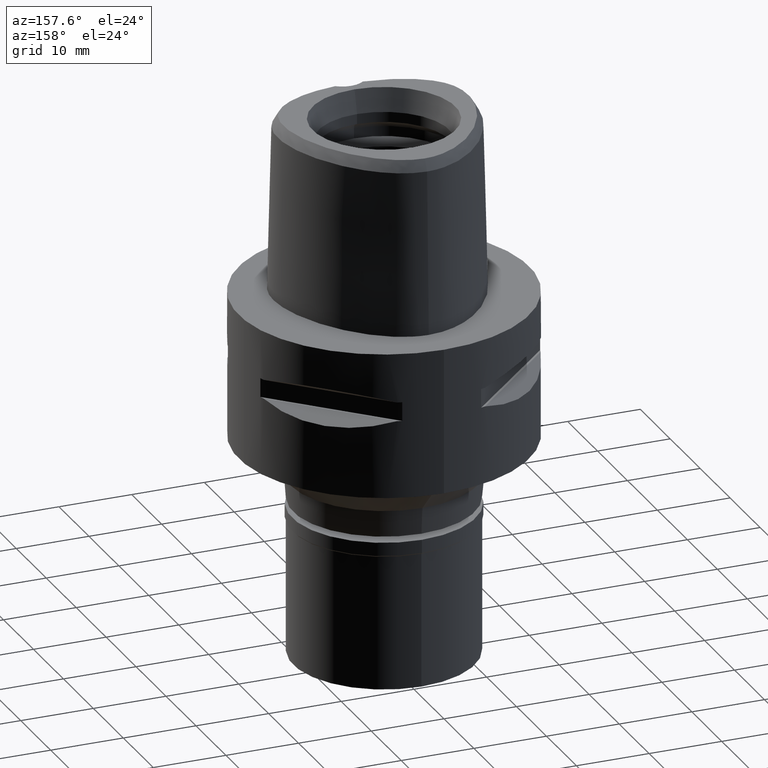
[diagram: clean part render]
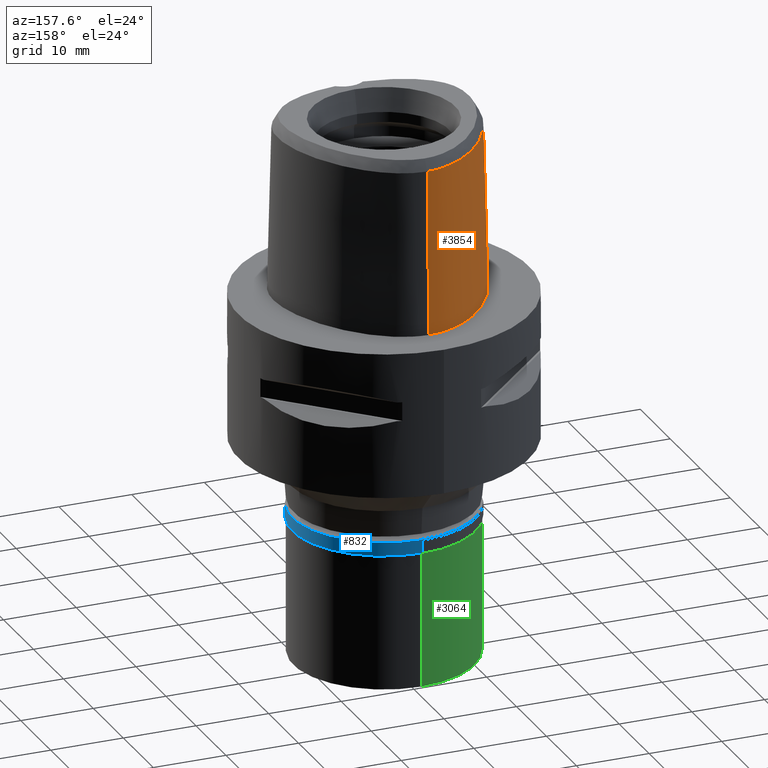
[diagram: same view with three faces highlighted in distinct colors, each labeled with its STEP entity id]
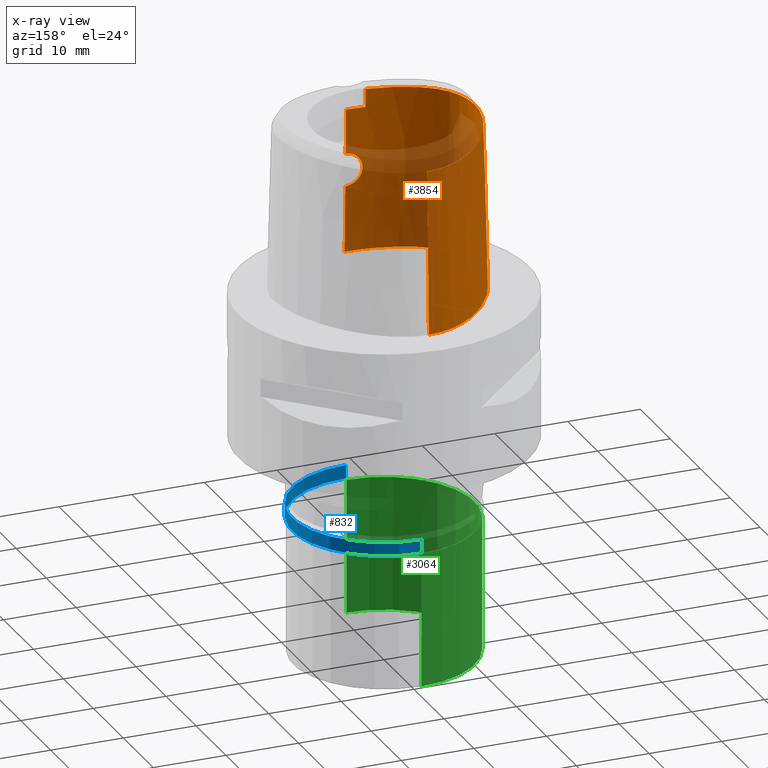
[diagram: x-ray of the same camera — body ghosted, the three highlighted faces saturated]
A machine part, auxiliary view with three faces highlighted in distinct colors.
The next image is the same camera in x-ray (body ghosted, the three faces saturated) — at least one of them is partly hidden behind the body in this view.
Their STEP definitions:

[orange] entity #3854 — the highlighted face is a freeform B-spline surface patch.
#12 = VECTOR ( 'NONE', #1520, 1000.000000000000000 ) ;
#39 = CARTESIAN_POINT ( 'NONE',  ( -1.347795335539689221, -13.16299999368002815, 2.529006730054260410E-07 ) ) ;
#46 = CARTESIAN_POINT ( 'NONE',  ( -9.263792084140000327, -10.80433664803999960, 7.356785167064000319 ) ) ;
#67 = CARTESIAN_POINT ( 'NONE',  ( -7.031868851921999841, -11.67341274055999989, 15.16398575251999858 ) ) ;
#69 = CARTESIAN_POINT ( 'NONE',  ( -1.214948594906910317, -12.79380401828840874, 13.45328328240799465 ) ) ;
#89 = CARTESIAN_POINT ( 'NONE',  ( -14.06716929407000016, -4.370330523283000090, -0.4504154183917000731 ) ) ;
#92 = CARTESIAN_POINT ( 'NONE',  ( -1.841838764608476842, -12.76497262167227476, 12.88570671879769414 ) ) ;
#112 = CARTESIAN_POINT ( 'NONE',  ( 0.8641029021681000399, -12.96254431192000212, 7.356785167064000319 ) ) ;
#130 = CARTESIAN_POINT ( 'NONE',  ( -12.06000614691000017, -7.835334318890000205, 22.97118633798000431 ) ) ;
#131 = EDGE_CURVE ( 'NONE', #4135, #1417, #4088, .T. ) ;
#146 = CARTESIAN_POINT ( 'NONE',  ( -1.826504515500986914, -12.83620081350063558, 10.10016303675815230 ) ) ;
#173 = CARTESIAN_POINT ( 'NONE',  ( -1.376879184710185333, -12.88006211686749758, 9.651496333327724386 ) ) ;
#195 = CARTESIAN_POINT ( 'NONE',  ( -2.018817522271044052, -12.81220052564507661, 10.39736850500416310 ) ) ;
#220 = CARTESIAN_POINT ( 'NONE',  ( -2.295509092785640082, -12.75393387474881024, 11.64825047697175542 ) ) ;
#291 = B_SPLINE_SURFACE_WITH_KNOTS ( 'NONE', 3, 3, ( 
 ( #3999, #3556, #2850, #3266 ),
 ( #3585, #2895, #3978, #1483 ),
 ( #2190, #307, #4299, #3633 ),
 ( #2491, #750, #1764, #4348 ),
 ( #4664, #1384, #2921, #2871 ),
 ( #1112, #4685, #1432, #2557 ),
 ( #2210, #395, #1026, #4636 ),
 ( #2473, #3930, #1044, #686 ),
 ( #3681, #3742, #1925, #4487 ),
 ( #1504, #2323, #2643, #4021 ),
 ( #1524, #2235, #1163, #2299 ),
 ( #89, #2669, #2941, #1856 ),
 ( #4446, #825, #437, #3697 ),
 ( #1231, #3294, #4463, #804 ),
 ( #3004, #1877, #4397, #1185 ),
 ( #1900, #3721, #1944, #130 ),
 ( #1204, #3316, #1135, #2623 ),
 ( #3338, #463, #3382, #1589 ),
 ( #418, #46, #4118, #851 ),
 ( #2580, #783, #67, #2963 ),
 ( #4421, #2602, #4047, #874 ),
 ( #1549, #2986, #4091, #4071 ),
 ( #3365, #489, #2258, #2279 ),
 ( #3764, #112, #3026, #1570 ) ),
 .UNSPECIFIED., .F., .F., .F.,
 ( 4, 1, 1, 1, 1, 1, 1, 1, 1, 1, 1, 1, 1, 1, 1, 1, 1, 1, 1, 1, 1, 4 ),
 ( 4, 4 ),
 ( -0.01174028709111000005, 0.0000000000000000000, 0.04166666667075000219, 0.08333333333723000336, 0.1666666666703000010, 0.2500000000031999958, 0.3333333333362000217, 0.4166666666691999921, 0.5000000000022000179, 0.5416666666687000031, 0.5833333333350999572, 0.6250000000016999735, 0.6458333333349000061, 0.6666666666682000697, 0.6875000000013999912, 0.7083333333346000238, 0.7500000000011000090, 0.7916666666677000253, 0.8333333333340999793, 0.9166666666671999808, 1.000000000000000000, 1.017964572395999800 ),
 ( -4.145565637991999915E-08, 1.000002114238999873 ),
 .UNSPECIFIED. ) ;
#307 = CARTESIAN_POINT ( 'NONE',  ( -0.3811409327697999894, 14.79504106564999866, 7.356785167064000319 ) ) ;
#341 = CARTESIAN_POINT ( 'NONE',  ( -12.82590901148556206, -6.531187915556558643, 22.52071717950003205 ) ) ;
#374 = CARTESIAN_POINT ( 'NONE',  ( 0.0000000000000000000, -12.81802318095999915, 13.79999999999999893 ) ) ;
#381 = CARTESIAN_POINT ( 'NONE',  ( -2.428699441135000389E-12, -13.16299999999999848, 3.877268876332999996E-13 ) ) ;
#386 = DIRECTION ( 'NONE',  ( 1.017277063185027972E-11, 0.02499051293165070395, -0.9996876883624270516 ) ) ;
#395 = CARTESIAN_POINT ( 'NONE',  ( -9.029359444128999712, 9.844403358753998745, 7.356785167064000319 ) ) ;
#418 = CARTESIAN_POINT ( 'NONE',  ( -9.360479238253001100, -10.97457288378999962, -0.4504154183917000731 ) ) ;
#437 = CARTESIAN_POINT ( 'NONE',  ( -13.37282164668999762, -5.628458944754999749, 15.16398575251999858 ) ) ;
#463 = CARTESIAN_POINT ( 'NONE',  ( -10.69740336653000057, -9.843145439085001058, 7.356785167064000319 ) ) ;
#489 = CARTESIAN_POINT ( 'NONE',  ( 0.5764111312063000536, -12.97358038101000055, 7.356785167064000319 ) ) ;
#502 = CARTESIAN_POINT ( 'NONE',  ( -2.140846386073651963, -12.79421935293861523, 10.65923901443731836 ) ) ;
#522 = CARTESIAN_POINT ( 'NONE',  ( -2.194313938148278353, -12.78526572574067899, 10.80969661529742076 ) ) ;
#552 = CARTESIAN_POINT ( 'NONE',  ( -1.653748280665647385, -12.85457989003768908, 9.901499109432402079 ) ) ;
#575 = CARTESIAN_POINT ( 'NONE',  ( -0.9848863495909622179, -12.90598536776486505, 9.421068656341857306 ) ) ;
#656 = CARTESIAN_POINT ( 'NONE',  ( -3.539803248252630485, 13.67924950902435910, 22.52071717950003205 ) ) ;
#674 = CARTESIAN_POINT ( 'NONE',  ( -11.01301038052310943, 6.358384390486118143, 22.52071717950003205 ) ) ;
#686 = CARTESIAN_POINT ( 'NONE',  ( -11.00320909744000097, 6.352726014762000162, 22.97118633798000431 ) ) ;
#715 = CARTESIAN_POINT ( 'NONE',  ( -2.075653757163896884, -12.75436700818544011, 12.49185155364052058 ) ) ;
#742 = LINE ( 'NONE', #2202, #2586 ) ;
#750 = CARTESIAN_POINT ( 'NONE',  ( -1.594059741186999890, 14.66589037872999945, 7.356785167064000319 ) ) ;
#755 = CARTESIAN_POINT ( 'NONE',  ( -1.011878398766373754, -12.80112054547331901, 13.56692882181785365 ) ) ;
#766 = VERTEX_POINT ( 'NONE', #1010 ) ;
#770 = CARTESIAN_POINT ( 'NONE',  ( -2.227964660006181763, -12.74977029743578427, 12.09060403548146745 ) ) ;
#783 = CARTESIAN_POINT ( 'NONE',  ( -7.098705601865000325, -11.85792493105999945, 7.356785167064000319 ) ) ;
#804 = CARTESIAN_POINT ( 'NONE',  ( -12.81560164319999906, -6.526604538018999868, 22.97118633798000431 ) ) ;
#806 = CARTESIAN_POINT ( 'NONE',  ( -1.599690988516359935, -12.77714212764092316, 13.15267742123481298 ) ) ;
#825 = CARTESIAN_POINT ( 'NONE',  ( -13.56059764589999972, -5.684126879757000594, 7.356785167064000319 ) ) ;
#851 = CARTESIAN_POINT ( 'NONE',  ( -9.070417775914998870, -10.46386417653000045, 22.97118633798000431 ) ) ;
#865 = CARTESIAN_POINT ( 'NONE',  ( -1.640618828100755877, -12.85590380833830260, 9.888026571611273852 ) ) ;
#874 = CARTESIAN_POINT ( 'NONE',  ( -3.941817108580000451, -12.35544361746000064, 22.97118633798000431 ) ) ;
#886 = CARTESIAN_POINT ( 'NONE',  ( -1.953201304415306705, -12.82084256532890443, 10.28519075025628560 ) ) ;
#910 = CARTESIAN_POINT ( 'NONE',  ( -1.505001200656392424, -12.86943791852777963, 9.752156969249115903 ) ) ;
#913 = CARTESIAN_POINT ( 'NONE',  ( 0.0000000000000000000, -12.81802318095999915, 13.79999999999999893 ) ) ;
#941 = CARTESIAN_POINT ( 'NONE',  ( -2.568703252653000479, -12.45023756080000155, 22.52071717950000007 ) ) ;
#957 = CARTESIAN_POINT ( 'NONE',  ( -1.123943696501069178, -12.89774608795628197, 9.492107695863516881 ) ) ;
#984 = ORIENTED_EDGE ( 'NONE', *, *, #2571, .T. ) ;
#996 = B_SPLINE_CURVE_WITH_KNOTS ( 'NONE', 3,
 ( #4674, #1752, #2053, #2126, #3492, #2858, #2151, #3189, #3598, #341, #2428, #2085, #1443, #3877, #3904, #674, #4310, #2881, #656, #4333, #3521, #1703 ),
 .UNSPECIFIED., .F., .F.,
 ( 4, 1, 1, 1, 1, 1, 1, 1, 1, 1, 1, 1, 1, 1, 1, 1, 1, 1, 1, 4 ),
 ( 0.0000000000000000000, 0.03040433083227192870, 0.1185493916654036667, 0.1626219220818108380, 0.2066944524984296039, 0.2507669829149425378, 0.2728032481231462136, 0.2948395133313497229, 0.3168757785396591475, 0.3389120437478628234, 0.3829845741644815615, 0.4270571045808887467, 0.4711296349974016806, 0.5592746958304276594, 0.6474197566634535272, 0.7355648174964796171, 0.8237098783293996807, 0.9118549391624997114, 0.9559274695789915510, 1.000000000000000000 ),
 .UNSPECIFIED. ) ;
#1010 = CARTESIAN_POINT ( 'NONE',  ( -6.268853442822000267E-11, 14.40001989798000182, 22.52071729252999788 ) ) ;
#1026 = CARTESIAN_POINT ( 'NONE',  ( -8.879307693765998266, 9.717869168045000450, 15.16398575251999858 ) ) ;
#1038 = CARTESIAN_POINT ( 'NONE',  ( -7.161686383300074787, -12.03179218152517471, 2.529006730054260410E-07 ) ) ;
#1044 = CARTESIAN_POINT ( 'NONE',  ( -11.17307773679999983, 6.450792826738999786, 15.16398575251999858 ) ) ;
#1045 = ORIENTED_EDGE ( 'NONE', *, *, #2288, .F. ) ;
#1050 = EDGE_CURVE ( 'NONE', #4301, #2286, #2139, .T. ) ;
#1057 = CARTESIAN_POINT ( 'NONE',  ( -0.5439938568822766385, 14.96299999368391731, 2.529006730054260410E-07 ) ) ;
#1070 = CARTESIAN_POINT ( 'NONE',  ( -1.965252258605611591, -12.75916002378915159, 12.69725596527202072 ) ) ;
#1093 = CARTESIAN_POINT ( 'NONE',  ( -2.110909525984961288, -12.75302106767308707, 12.41330912378777107 ) ) ;
#1105 = CARTESIAN_POINT ( 'NONE',  ( -6.372642517147525609, 12.66899061998852538, 2.529006730054260410E-07 ) ) ;
#1112 = CARTESIAN_POINT ( 'NONE',  ( -6.379661316068999888, 12.67792013946000118, -0.4504154183917000731 ) ) ;
#1135 = CARTESIAN_POINT ( 'NONE',  ( -11.56079927202000057, -8.766973794543000409, 15.16398575251999858 ) ) ;
#1163 = CARTESIAN_POINT ( 'NONE',  ( -13.79295327894999978, -2.621895083530000115, 15.16398575251999858 ) ) ;
#1166 = CARTESIAN_POINT ( 'NONE',  ( -1.488347988393551091, -12.78243808049003505, 13.25392016210674484 ) ) ;
#1185 = CARTESIAN_POINT ( 'NONE',  ( -12.47264419344000075, -7.201084481831999895, 22.97118633798000431 ) ) ;
#1204 = CARTESIAN_POINT ( 'NONE',  ( -11.84499494409999976, -9.036543429988999065, -0.4504154183917000731 ) ) ;
#1221 = CARTESIAN_POINT ( 'NONE',  ( -0.9319488030642069099, -12.90881411230993514, 9.397158616747370630 ) ) ;
#1231 = CARTESIAN_POINT ( 'NONE',  ( -13.35152085230000019, -6.764911736999000169, -0.4504154183917000731 ) ) ;
#1243 = CARTESIAN_POINT ( 'NONE',  ( -1.936335331577908825, -12.82296972919318989, 10.25874399572378515 ) ) ;
#1267 = CARTESIAN_POINT ( 'NONE',  ( -3.136064137311999915E-13, -12.93301545397000041, 9.199999999999999289 ) ) ;
#1280 = CARTESIAN_POINT ( 'NONE',  ( -2.603602034519999719, -12.50961198144999997, 20.00000000000000000 ) ) ;
#1289 = CARTESIAN_POINT ( 'NONE',  ( -1.673318493212270885, -12.85259581698449871, 9.921828725747490196 ) ) ;
#1321 = CARTESIAN_POINT ( 'NONE',  ( -2.071380972957955979, -12.80488926460895627, 10.49747195909083608 ) ) ;
#1384 = CARTESIAN_POINT ( 'NONE',  ( -3.702933630589999581, 14.02580463633000107, 7.356785167064000319 ) ) ;
#1405 = CARTESIAN_POINT ( 'NONE',  ( -13.73754040830366741, -5.736583201321001191, 2.529006730054260410E-07 ) ) ;
#1417 = VERTEX_POINT ( 'NONE', #1280 ) ;
#1432 = CARTESIAN_POINT ( 'NONE',  ( -6.136343090077000184, 12.36836363825000085, 15.16398575251999858 ) ) ;
#1443 = CARTESIAN_POINT ( 'NONE',  ( -13.60847657048161885, -2.623199557594503517, 22.52071717950003205 ) ) ;
#1474 = CARTESIAN_POINT ( 'NONE',  ( 1.664811294063999892E-10, 14.96299999994999830, 3.883375102968000129E-13 ) ) ;
#1483 = CARTESIAN_POINT ( 'NONE',  ( 0.2833924624936000058, 14.38450250588999957, 22.97118633798000431 ) ) ;
#1487 = CARTESIAN_POINT ( 'NONE',  ( -0.8152708980165711550, -12.80693898155978694, 13.65082120268139043 ) ) ;
#1504 = CARTESIAN_POINT ( 'NONE',  ( -14.01182760107000114, -0.1843230755137999777, -0.4504154183917000731 ) ) ;
#1520 = DIRECTION ( 'NONE',  ( -2.298296151342910266E-13, -0.02499051295424905769, -0.9996876883618621701 ) ) ;
#1524 = CARTESIAN_POINT ( 'NONE',  ( -14.18449854077999994, -2.619126383658000101, -0.4504154183917000731 ) ) ;
#1549 = CARTESIAN_POINT ( 'NONE',  ( -1.057767382168000037, -13.20004108272000032, -0.4504154183917000731 ) ) ;
#1551 = CARTESIAN_POINT ( 'NONE',  ( -1.531093129367631978, -12.78047425280173677, 13.21704160996870669 ) ) ;
#1570 = CARTESIAN_POINT ( 'NONE',  ( 0.8491476808087998762, -12.57247799159000223, 22.97118633798000431 ) ) ;
#1586 = CARTESIAN_POINT ( 'NONE',  ( -2.568703252653000479, -12.45023756080000155, 22.52071717950000007 ) ) ;
#1589 = CARTESIAN_POINT ( 'NONE',  ( -10.45540628447999865, -9.534714904185999984, 22.97118633798000431 ) ) ;
#1604 = CARTESIAN_POINT ( 'NONE',  ( -2.287734898354136348, -12.76560074340179085, 11.21901780316244412 ) ) ;
#1626 = CARTESIAN_POINT ( 'NONE',  ( -1.186927697902216083, -12.89362213064997498, 9.528479479259775786 ) ) ;
#1648 = CARTESIAN_POINT ( 'NONE',  ( -1.924883428630888238, -12.82440318964656711, 10.24105807494909115 ) ) ;
#1673 = CARTESIAN_POINT ( 'NONE',  ( -2.300143802991293729, -12.76057655722843798, 11.36375986572099883 ) ) ;
#1703 = CARTESIAN_POINT ( 'NONE',  ( -6.268853442822000267E-11, 14.40001989798000182, 22.52071729252999788 ) ) ;
#1752 = CARTESIAN_POINT ( 'NONE',  ( -3.014424021962877731, -12.39773933600193878, 22.52071717950003205 ) ) ;
#1764 = CARTESIAN_POINT ( 'NONE',  ( -1.553816165458999921, 14.47371231126999902, 15.16398575251999858 ) ) ;
#1779 = CARTESIAN_POINT ( 'NONE',  ( -2.603602034519999719, -12.50961198144999997, 20.00000000000000000 ) ) ;
#1781 = CARTESIAN_POINT ( 'NONE',  ( 1.664811294063999892E-10, 14.96299999994999830, 3.883375102968000129E-13 ) ) ;
#1834 = CARTESIAN_POINT ( 'NONE',  ( -0.5819386986818497753, -12.81237603767194599, 13.72652564638334916 ) ) ;
#1848 = CARTESIAN_POINT ( 'NONE',  ( -11.50301489621815776, 6.641268746823373093, 2.529006730054260410E-07 ) ) ;
#1856 = CARTESIAN_POINT ( 'NONE',  ( -13.48500858715999939, -4.287290187550000020, 22.97118633798000431 ) ) ;
#1874 = CARTESIAN_POINT ( 'NONE',  ( -3.136064137311999915E-13, -12.93301545397000041, 9.199999999999999289 ) ) ;
#1877 = CARTESIAN_POINT ( 'NONE',  ( -12.81132618974999993, -7.396622624083001085, 7.356785167064000319 ) ) ;
#1879 = CARTESIAN_POINT ( 'NONE',  ( -1.150408608482918371, -12.79622784198479657, 13.49197783700753916 ) ) ;
#1900 = CARTESIAN_POINT ( 'NONE',  ( -12.53434584485000158, -8.180300368746999951, -0.4504154183917000731 ) ) ;
#1922 = CARTESIAN_POINT ( 'NONE',  ( -2.580556340274079208, -12.46988384530705041, 21.68047811966666671 ) ) ;
#1925 = CARTESIAN_POINT ( 'NONE',  ( -12.85560852364000084, 2.830737010018999911, 15.16398575251999858 ) ) ;
#1944 = CARTESIAN_POINT ( 'NONE',  ( -12.21811937956000094, -7.950323002176000742, 15.16398575251999858 ) ) ;
#1979 = CARTESIAN_POINT ( 'NONE',  ( -1.969151562591274995, -12.81878448191199382, 10.31136768718370256 ) ) ;
#2006 = CARTESIAN_POINT ( 'NONE',  ( -0.8945153555997669148, -12.91072944406700351, 9.381059634973302863 ) ) ;
#2053 = CARTESIAN_POINT ( 'NONE',  ( -4.736458213767877901, -12.13940339377869471, 22.52071717950003205 ) ) ;
#2085 = CARTESIAN_POINT ( 'NONE',  ( -13.49620532111823401, -4.288887307616622735, 22.52071717950003205 ) ) ;
#2101 = EDGE_CURVE ( 'NONE', #2286, #3564, #2599, .T. ) ;
#2126 = CARTESIAN_POINT ( 'NONE',  ( -6.968888528385980052, -11.49954675418917027, 22.52071717950003205 ) ) ;
#2139 = B_SPLINE_CURVE_WITH_KNOTS ( 'NONE', 3,
 ( #374, #2239, #2559, #3246, #1834, #2942, #4026, #1487, #3318, #3271, #4002, #2584, #755, #2215, #1879, #69, #2966, #4425, #1166, #1551, #4050, #806, #3699, #3342, #92, #1070, #2516, #3961, #715, #3614, #1093, #2539, #3980, #4013, #770, #2226, #3464, #4504, #220, #4154, #4576, #1673, #1604, #2731, #3395, #522, #3849, #2311, #502, #3442, #2706, #3115, #1321, #195, #2758, #1979, #886, #1243, #1648, #2681, #3777, #146, #4131, #3422, #1289, #552, #865, #2334, #910, #173, #1626, #957, #4209, #575, #1221, #3066, #2006, #4527, #2403, #2382, #1267 ),
 .UNSPECIFIED., .F., .F.,
 ( 4, 2, 2, 1, 1, 2, 2, 2, 2, 1, 2, 1, 2, 2, 2, 2, 1, 1, 2, 2, 2, 2, 2, 2, 2, 2, 1, 1, 2, 2, 2, 2, 1, 2, 2, 2, 1, 1, 2, 2, 2, 2, 1, 1, 2, 2, 4 ),
 ( 0.0000000000000000000, 0.06250000000000477396, 0.09375000000000716094, 0.1093750000000082573, 0.1171875000000088263, 0.1210937500000092426, 0.1250000000000096867, 0.1562500000000119627, 0.1718750000000131561, 0.1875000000000143496, 0.2187500000000163758, 0.2343750000000174305, 0.2421875000000181521, 0.2500000000000188738, 0.3125000000000266454, 0.3437500000000305311, 0.3593750000000321965, 0.3671875000000325850, 0.3710937500000328071, 0.3750000000000329736, 0.4375000000000303646, 0.4687500000000294209, 0.4843750000000292544, 0.5000000000000290878, 0.5625000000000264233, 0.5937500000000249800, 0.6093750000000243139, 0.6171875000000240918, 0.6210937500000235367, 0.6250000000000230926, 0.6562500000000152101, 0.6718750000000113243, 0.6796875000000096589, 0.6835937500000089928, 0.6875000000000084377, 0.7187500000000051070, 0.7343750000000034417, 0.7421875000000026645, 0.7460937500000024425, 0.7500000000000023315, 0.8125000000000012212, 0.8437500000000005551, 0.8593750000000002220, 0.8671875000000001110, 0.8710937500000000000, 0.8750000000000000000, 1.000000000000000000 ),
 .UNSPECIFIED. ) ;
#2151 = CARTESIAN_POINT ( 'NONE',  ( -11.42690036617553950, -8.639965951774202679, 22.52071717950003205 ) ) ;
#2157 = CARTESIAN_POINT ( 'NONE',  ( -4.043386006610663053, -12.92392499374611248, 2.529006730054260410E-07 ) ) ;
#2167 = CARTESIAN_POINT ( 'NONE',  ( 0.0000000000000000000, -12.81802318095999915, 13.79999999999999893 ) ) ;
#2190 = CARTESIAN_POINT ( 'NONE',  ( -0.3913005304923000138, 14.99062904296999932, -0.4504154183917000731 ) ) ;
#2194 = B_SPLINE_CURVE_WITH_KNOTS ( 'NONE', 3,
 ( #1474, #1057, #3258, #3646, #1105, #3972, #1848, #4656, #3551, #4388, #2912, #1405, #3285, #3577, #4294, #3217, #4366, #3193, #1038, #2157, #39, #4678 ),
 .UNSPECIFIED., .F., .F.,
 ( 4, 1, 1, 1, 1, 1, 1, 1, 1, 1, 1, 1, 1, 1, 1, 1, 1, 1, 1, 4 ),
 ( 0.0000000000000000000, 0.04166666667075000219, 0.08333333333723000336, 0.1666666666703000010, 0.2500000000031999958, 0.3333333333362000217, 0.4166666666691999921, 0.5000000000022000179, 0.5416666666687000031, 0.5833333333350999572, 0.6250000000016999735, 0.6458333333349000061, 0.6666666666682000697, 0.6875000000013999912, 0.7083333333346000238, 0.7500000000011000090, 0.7916666666677000253, 0.8333333333340999793, 0.9166666666671999808, 1.000000000000000000 ),
 .UNSPECIFIED. ) ;
#2202 = CARTESIAN_POINT ( 'NONE',  ( -6.268853442822000267E-11, 14.40001989798000182, 22.52071729252999788 ) ) ;
#2210 = CARTESIAN_POINT ( 'NONE',  ( -9.179411194492001158, 9.970937549464000682, -0.4504154183917000731 ) ) ;
#2215 = CARTESIAN_POINT ( 'NONE',  ( -1.115229725332413491, -12.79751522695110388, 13.51191098754960507 ) ) ;
#2226 = CARTESIAN_POINT ( 'NONE',  ( -2.271431586346507547, -12.75091221571057609, 11.86913203842019726 ) ) ;
#2235 = CARTESIAN_POINT ( 'NONE',  ( -13.98872590987000031, -2.620510733594000108, 7.356785167064000319 ) ) ;
#2239 = CARTESIAN_POINT ( 'NONE',  ( -0.1401305126056105743, -12.81802318096000270, 13.80000000000000426 ) ) ;
#2258 = CARTESIAN_POINT ( 'NONE',  ( 0.5714334852506000040, -12.77845896670000059, 15.16398575251999858 ) ) ;
#2276 = CARTESIAN_POINT ( 'NONE',  ( -3.136064137311999915E-13, -12.93301545397000041, 9.199999999999999289 ) ) ;
#2279 = CARTESIAN_POINT ( 'NONE',  ( 0.5664558392949999854, -12.58333755239000062, 22.97118633798000431 ) ) ;
#2286 = VERTEX_POINT ( 'NONE', #2276 ) ;
#2288 = EDGE_CURVE ( 'NONE', #2391, #1417, #2977, .T. ) ;
#2299 = CARTESIAN_POINT ( 'NONE',  ( -13.59718064803999837, -2.623279433466000121, 22.97118633798000431 ) ) ;
#2311 = CARTESIAN_POINT ( 'NONE',  ( -2.151849462947669878, -12.79245487688642946, 10.68743969069598343 ) ) ;
#2323 = CARTESIAN_POINT ( 'NONE',  ( -13.81861777200999875, -0.2186980999406999970, 7.356785167064000319 ) ) ;
#2334 = CARTESIAN_POINT ( 'NONE',  ( -1.635013697133357313, -12.85646650681847092, 9.882332749081379930 ) ) ;
#2382 = CARTESIAN_POINT ( 'NONE',  ( -0.2871975164121355339, -12.93301545397000218, 9.200000000000001066 ) ) ;
#2391 = VERTEX_POINT ( 'NONE', #941 ) ;
#2403 = CARTESIAN_POINT ( 'NONE',  ( -0.5889969291352912251, -12.92583349803552117, 9.254553718819758856 ) ) ;
#2407 = CARTESIAN_POINT ( 'NONE',  ( -0.8728571771476222318, -12.66303360443449222, 19.99999964621421000 ) ) ;
#2428 = CARTESIAN_POINT ( 'NONE',  ( -13.19588017074105224, -5.576003004572418931, 22.52071717950003205 ) ) ;
#2473 = CARTESIAN_POINT ( 'NONE',  ( -11.51281501553000020, 6.646926450691000632, -0.4504154183917000731 ) ) ;
#2491 = CARTESIAN_POINT ( 'NONE',  ( -1.634303316915000082, 14.85806844620000078, -0.4504154183917000731 ) ) ;
#2510 = CARTESIAN_POINT ( 'NONE',  ( -4.221675219619160308E-09, -12.76635998234183766, 15.86666680636480997 ) ) ;
#2516 = CARTESIAN_POINT ( 'NONE',  ( -2.002296320555181364, -12.75747848527826278, 12.63397802741203613 ) ) ;
#2536 = VERTEX_POINT ( 'NONE', #1781 ) ;
#2539 = CARTESIAN_POINT ( 'NONE',  ( -2.117617568217390112, -12.75277667900068224, 12.39764604230459533 ) ) ;
#2557 = CARTESIAN_POINT ( 'NONE',  ( -6.014683977081999977, 12.21358538764999935, 22.97118633798000431 ) ) ;
#2559 = CARTESIAN_POINT ( 'NONE',  ( -0.2855776774823177711, -12.81694753461941794, 13.78716430547175342 ) ) ;
#2571 = EDGE_CURVE ( 'NONE', #2536, #3564, #2194, .T. ) ;
#2580 = CARTESIAN_POINT ( 'NONE',  ( -7.165542351807999921, -12.04243712156999990, -0.4504154183917000731 ) ) ;
#2584 = CARTESIAN_POINT ( 'NONE',  ( -0.9448229129271795701, -12.80325335383371410, 13.59813410706257741 ) ) ;
#2586 = VECTOR ( 'NONE', #386, 1000.000000000000114 ) ;
#2599 = LINE ( 'NONE', #1874, #12 ) ;
#2602 = CARTESIAN_POINT ( 'NONE',  ( -4.010857406040999606, -12.74186233500999776, 7.356785167064000319 ) ) ;
#2623 = CARTESIAN_POINT ( 'NONE',  ( -11.41870143598000098, -8.632188976819998416, 22.97118633798000431 ) ) ;
#2639 = CARTESIAN_POINT ( 'NONE',  ( -2.603602034519999719, -12.50961198144999997, 20.00000000000000000 ) ) ;
#2643 = CARTESIAN_POINT ( 'NONE',  ( -13.62540794294000079, -0.2530731243674999575, 15.16398575251999858 ) ) ;
#2668 = ORIENTED_EDGE ( 'NONE', *, *, #3761, .F. ) ;
#2669 = CARTESIAN_POINT ( 'NONE',  ( -13.87311572510000168, -4.342650411371999475, 7.356785167064000319 ) ) ;
#2681 = CARTESIAN_POINT ( 'NONE',  ( -1.918338618982708299, -12.82521576174283062, 10.23111646875308800 ) ) ;
#2706 = CARTESIAN_POINT ( 'NONE',  ( -2.128793241413422965, -12.79612817070244724, 10.62919246598731959 ) ) ;
#2731 = CARTESIAN_POINT ( 'NONE',  ( -2.245603534414450930, -12.77547641080668406, 10.99707330927152604 ) ) ;
#2753 = EDGE_CURVE ( 'NONE', #766, #2536, #742, .T. ) ;
#2758 = CARTESIAN_POINT ( 'NONE',  ( -1.999884899135028427, -12.81476042234132251, 10.36330347219744397 ) ) ;
#2850 = CARTESIAN_POINT ( 'NONE',  ( 0.4366859228247000346, 14.57070289980000055, 15.16398575251999858 ) ) ;
#2858 = CARTESIAN_POINT ( 'NONE',  ( -10.46238780242026678, -9.543613000371962585, 22.52071717950003205 ) ) ;
#2871 = CARTESIAN_POINT ( 'NONE',  ( -3.534957196055000139, 13.66895452772000041, 22.97118633798000431 ) ) ;
#2881 = CARTESIAN_POINT ( 'NONE',  ( -6.021703609490875131, 12.22251596750838054, 22.52071717950003205 ) ) ;
#2895 = CARTESIAN_POINT ( 'NONE',  ( 0.2991395936534999578, 14.77459901527000063, 7.356785167064000319 ) ) ;
#2912 = CARTESIAN_POINT ( 'NONE',  ( -14.05597388957416349, -4.368733592853022429, 2.529006730054260410E-07 ) ) ;
#2921 = CARTESIAN_POINT ( 'NONE',  ( -3.618945413321999816, 13.84737958202999941, 15.16398575251999858 ) ) ;
#2941 = CARTESIAN_POINT ( 'NONE',  ( -13.67906215612999965, -4.314970299460999748, 15.16398575251999858 ) ) ;
#2942 = CARTESIAN_POINT ( 'NONE',  ( -0.6939323844612986791, -12.80995583340563826, 13.69316554814096065 ) ) ;
#2963 = CARTESIAN_POINT ( 'NONE',  ( -6.965032101979000245, -11.48890055004999944, 22.97118633798000431 ) ) ;
#2966 = CARTESIAN_POINT ( 'NONE',  ( -1.310334703300464421, -12.79012657991068380, 13.39286631455621013 ) ) ;
#2977 = B_SPLINE_CURVE_WITH_KNOTS ( 'NONE', 3,
 ( #1586, #1922, #3361, #2639 ),
 .UNSPECIFIED., .F., .F.,
 ( 4, 4 ),
 ( 0.0000000000000000000, 1.000000000000000000 ),
 .UNSPECIFIED. ) ;
#2986 = CARTESIAN_POINT ( 'NONE',  ( -1.048704667924000189, -13.00466318408000177, 7.356785167064000319 ) ) ;
#3004 = CARTESIAN_POINT ( 'NONE',  ( -12.98066718789999996, -7.494391695208999948, -0.4504154183917000731 ) ) ;
#3026 = CARTESIAN_POINT ( 'NONE',  ( 0.8566252914884000536, -12.76751115174999995, 15.16398575251999858 ) ) ;
#3066 = CARTESIAN_POINT ( 'NONE',  ( -0.9094609401182833786, -12.90997073725082345, 9.387431234174282935 ) ) ;
#3115 = CARTESIAN_POINT ( 'NONE',  ( -2.100781098110155565, -12.80050632932169208, 10.56139995706970502 ) ) ;
#3173 = CARTESIAN_POINT ( 'NONE',  ( -1.260417588442999891E-08, -12.66301535847000004, 19.99999996345999875 ) ) ;
#3175 = CARTESIAN_POINT ( 'NONE',  ( -1.260417588442999891E-08, -12.66301535847000004, 19.99999996345999875 ) ) ;
#3189 = CARTESIAN_POINT ( 'NONE',  ( -12.06912915253496443, -7.841969072900422333, 22.52071717950003205 ) ) ;
#3193 = CARTESIAN_POINT ( 'NONE',  ( -9.354901130076006766, -10.96475155698222181, 2.529006730054260410E-07 ) ) ;
#3203 = ORIENTED_EDGE ( 'NONE', *, *, #2101, .F. ) ;
#3217 = CARTESIAN_POINT ( 'NONE',  ( -11.83679698741775788, -9.028767378446552527, 2.529006730054260410E-07 ) ) ;
#3246 = CARTESIAN_POINT ( 'NONE',  ( -0.5074042838810919331, -12.81372059559767074, 13.74459566185631232 ) ) ;
#3258 = CARTESIAN_POINT ( 'NONE',  ( -1.631981570857840902, 14.84698124377454675, 2.529006730054260410E-07 ) ) ;
#3266 = CARTESIAN_POINT ( 'NONE',  ( 0.4248031091723000197, 14.37590362463999938, 22.97118633798000431 ) ) ;
#3271 = CARTESIAN_POINT ( 'NONE',  ( -0.8618360501669412033, -12.80564904629979672, 13.63244908506613484 ) ) ;
#3285 = CARTESIAN_POINT ( 'NONE',  ( -13.34121470787655461, -6.760328903676220413, 2.529006730054260410E-07 ) ) ;
#3294 = CARTESIAN_POINT ( 'NONE',  ( -13.17288111592999833, -6.685476004006000394, 7.356785167064000319 ) ) ;
#3308 = ORIENTED_EDGE ( 'NONE', *, *, #1050, .F. ) ;
#3316 = CARTESIAN_POINT ( 'NONE',  ( -11.70289710806000016, -8.901758612265998849, 7.356785167064000319 ) ) ;
#3318 = CARTESIAN_POINT ( 'NONE',  ( -0.8432163855915286721, -12.80617006249601175, 13.63988004449705294 ) ) ;
#3338 = CARTESIAN_POINT ( 'NONE',  ( -10.81840190755000108, -9.997360706534999863, -0.4504154183917000731 ) ) ;
#3342 = CARTESIAN_POINT ( 'NONE',  ( -1.743097972661440620, -12.76987166339498891, 13.00957715264290293 ) ) ;
#3361 = CARTESIAN_POINT ( 'NONE',  ( -2.592184028741372881, -12.48966611859522047, 20.84023905983333336 ) ) ;
#3365 = CARTESIAN_POINT ( 'NONE',  ( 0.5813887771619999922, -13.16870179533000140, -0.4504154183917000731 ) ) ;
#3382 = CARTESIAN_POINT ( 'NONE',  ( -10.57640482549999916, -9.688930171635000477, 15.16398575251999858 ) ) ;
#3395 = CARTESIAN_POINT ( 'NONE',  ( -2.227644355449671654, -12.77915819796579733, 10.92230603779528231 ) ) ;
#3422 = CARTESIAN_POINT ( 'NONE',  ( -1.718104249315451693, -12.84797894397791040, 9.970099457365208195 ) ) ;
#3442 = CARTESIAN_POINT ( 'NONE',  ( -2.133369772113715701, -12.79540785461999164, 10.64044447588278430 ) ) ;
#3464 = CARTESIAN_POINT ( 'NONE',  ( -2.282166019910153665, -12.75165090099520704, 11.79525896608643087 ) ) ;
#3492 = CARTESIAN_POINT ( 'NONE',  ( -9.075996546496380546, -10.47368666962801953, 22.52071717950003205 ) ) ;
#3495 = CARTESIAN_POINT ( 'NONE',  ( -1.745769949806668775, -12.61172391797467718, 19.99999964621421000 ) ) ;
#3505 = EDGE_CURVE ( 'NONE', #2391, #766, #996, .T. ) ;
#3521 = CARTESIAN_POINT ( 'NONE',  ( -0.5039711950889820269, 14.40001990035034041, 22.52071717950003205 ) ) ;
#3551 = CARTESIAN_POINT ( 'NONE',  ( -14.00068087390398297, -0.1863062511134863652, 2.529006730054260410E-07 ) ) ;
#3556 = CARTESIAN_POINT ( 'NONE',  ( 0.4485687364770999941, 14.76550217495000084, 7.356785167064000319 ) ) ;
#3564 = VERTEX_POINT ( 'NONE', #381 ) ;
#3577 = CARTESIAN_POINT ( 'NONE',  ( -12.97089750944429198, -7.488751168707748818, 2.529006730054260410E-07 ) ) ;
#3585 = CARTESIAN_POINT ( 'NONE',  ( 0.3070131592334999771, 14.96964726994999850, -0.4504154183917000731 ) ) ;
#3588 = ORIENTED_EDGE ( 'NONE', *, *, #2753, .T. ) ;
#3598 = CARTESIAN_POINT ( 'NONE',  ( -12.48241503205210812, -7.206725678149857650, 22.52071717950003205 ) ) ;
#3614 = CARTESIAN_POINT ( 'NONE',  ( -2.100682809757365543, -12.75339965040591572, 12.43682748920701542 ) ) ;
#3633 = CARTESIAN_POINT ( 'NONE',  ( -0.3608217373246999649, 14.40386511100999911, 22.97118633798000431 ) ) ;
#3646 = CARTESIAN_POINT ( 'NONE',  ( -3.782076371063250342, 14.19393593171754020, 2.529006730054260410E-07 ) ) ;
#3655 = FACE_OUTER_BOUND ( 'NONE', #4460, .T. ) ;
#3665 = B_SPLINE_CURVE_WITH_KNOTS ( 'NONE', 3,
 ( #3175, #4374, #2510, #2167 ),
 .UNSPECIFIED., .F., .F.,
 ( 4, 4 ),
 ( 0.0000000000000000000, 1.000000000000000000 ),
 .UNSPECIFIED. ) ;
#3681 = CARTESIAN_POINT ( 'NONE',  ( -13.22478983126999985, 2.964135534356000079, -0.4504154183917000731 ) ) ;
#3697 = CARTESIAN_POINT ( 'NONE',  ( -13.18504564747999908, -5.572791009752998903, 22.97118633798000431 ) ) ;
#3699 = CARTESIAN_POINT ( 'NONE',  ( -1.611877499992751650, -12.77653505885875695, 13.14081569331372279 ) ) ;
#3721 = CARTESIAN_POINT ( 'NONE',  ( -12.37623261220999815, -8.065311685460999414, 7.356785167064000319 ) ) ;
#3742 = CARTESIAN_POINT ( 'NONE',  ( -13.04019917745000079, 2.897436272188000039, 7.356785167064000319 ) ) ;
#3761 = EDGE_CURVE ( 'NONE', #4135, #4301, #3665, .T. ) ;
#3764 = CARTESIAN_POINT ( 'NONE',  ( 0.8715805128476998842, -13.15757747207999806, -0.4504154183917000731 ) ) ;
#3777 = CARTESIAN_POINT ( 'NONE',  ( -1.871347986755834025, -12.83101099829895020, 10.16070205657113235 ) ) ;
#3831 = CARTESIAN_POINT ( 'NONE',  ( -1.260417588442999891E-08, -12.66301535847000004, 19.99999996345999875 ) ) ;
#3849 = CARTESIAN_POINT ( 'NONE',  ( -2.176051754930679483, -12.78846570138717276, 10.75327920937323611 ) ) ;
#3854 = ADVANCED_FACE ( 'NONE', ( #3655 ), #291, .T. ) ;
#3877 = CARTESIAN_POINT ( 'NONE',  ( -13.44334616472794508, -0.2854647376911740309, 22.52071717950003205 ) ) ;
#3904 = CARTESIAN_POINT ( 'NONE',  ( -12.68166860123812256, 2.767886241323635588, 22.52071717950003205 ) ) ;
#3930 = CARTESIAN_POINT ( 'NONE',  ( -11.34294637617000134, 6.548859638715000209, 7.356785167064000319 ) ) ;
#3961 = CARTESIAN_POINT ( 'NONE',  ( -2.052152098439465444, -12.75534016868718012, 12.53920447716560282 ) ) ;
#3972 = CARTESIAN_POINT ( 'NONE',  ( -9.170754357879621566, 9.963637495901105368, 2.529006730054260410E-07 ) ) ;
#3978 = CARTESIAN_POINT ( 'NONE',  ( 0.2912660280735999696, 14.57955076058000010, 15.16398575251999858 ) ) ;
#3980 = CARTESIAN_POINT ( 'NONE',  ( -2.120426573750170185, -12.75267573305423596, 12.39100281169534234 ) ) ;
#3999 = CARTESIAN_POINT ( 'NONE',  ( 0.4604515501294999535, 14.96030145009999934, -0.4504154183917000731 ) ) ;
#4002 = CARTESIAN_POINT ( 'NONE',  ( -0.8723905964265250557, -12.80534818375293327, 13.62814720800847290 ) ) ;
#4010 = ORIENTED_EDGE ( 'NONE', *, *, #3505, .T. ) ;
#4013 = CARTESIAN_POINT ( 'NONE',  ( -2.183922617254193899, -12.75044120202473508, 12.23808364787375069 ) ) ;
#4021 = CARTESIAN_POINT ( 'NONE',  ( -13.43219811388000018, -0.2874481487943999491, 22.97118633798000431 ) ) ;
#4026 = CARTESIAN_POINT ( 'NONE',  ( -0.7499755959852828502, -12.80864488942805757, 13.67492269767374502 ) ) ;
#4047 = CARTESIAN_POINT ( 'NONE',  ( -3.976337257309999540, -12.54865297622999876, 15.16398575251999858 ) ) ;
#4050 = CARTESIAN_POINT ( 'NONE',  ( -1.572442839314114105, -12.77847914798856621, 13.17862367268234003 ) ) ;
#4071 = CARTESIAN_POINT ( 'NONE',  ( -1.030579239434999739, -12.61390738681000201, 22.97118633798000431 ) ) ;
#4088 = B_SPLINE_CURVE_WITH_KNOTS ( 'NONE', 3,
 ( #3831, #2407, #3495, #1779 ),
 .UNSPECIFIED., .F., .F.,
 ( 4, 4 ),
 ( 0.0000000000000000000, 1.000000000000000000 ),
 .UNSPECIFIED. ) ;
#4091 = CARTESIAN_POINT ( 'NONE',  ( -1.039641953679000030, -12.80928528545000056, 15.16398575251999858 ) ) ;
#4118 = CARTESIAN_POINT ( 'NONE',  ( -9.167104930027999643, -10.63410041228999958, 15.16398575251999858 ) ) ;
#4131 = CARTESIAN_POINT ( 'NONE',  ( -1.754951805176104607, -12.84404327703087212, 10.01286862426010416 ) ) ;
#4135 = VERTEX_POINT ( 'NONE', #3173 ) ;
#4154 = CARTESIAN_POINT ( 'NONE',  ( -2.299064434898544285, -12.75538865175284897, 11.57511939275938673 ) ) ;
#4209 = CARTESIAN_POINT ( 'NONE',  ( -1.030987739344369825, -12.90333795298396602, 9.443720710652282690 ) ) ;
#4294 = CARTESIAN_POINT ( 'NONE',  ( -12.52522392246049598, -8.173666402524871089, 2.529006730054260410E-07 ) ) ;
#4299 = CARTESIAN_POINT ( 'NONE',  ( -0.3709813350471999893, 14.59945308832999977, 15.16398575251999858 ) ) ;
#4301 = VERTEX_POINT ( 'NONE', #913 ) ;
#4310 = CARTESIAN_POINT ( 'NONE',  ( -8.737913808020053352, 9.598635897784543403, 22.52071717950003205 ) ) ;
#4333 = CARTESIAN_POINT ( 'NONE',  ( -1.515894611552557780, 14.29262276282199373, 22.52071717950002849 ) ) ;
#4348 = CARTESIAN_POINT ( 'NONE',  ( -1.513572589730999951, 14.28153424379999947, 22.97118633798000431 ) ) ;
#4366 = CARTESIAN_POINT ( 'NONE',  ( -10.81142121857160454, -9.988463666878887537, 2.529006730054260410E-07 ) ) ;
#4374 = CARTESIAN_POINT ( 'NONE',  ( -4.211944520880834968E-09, -12.71469678372726264, 17.93333361272974713 ) ) ;
#4378 = ORIENTED_EDGE ( 'NONE', *, *, #131, .T. ) ;
#4388 = CARTESIAN_POINT ( 'NONE',  ( -14.17320395957808188, -2.619206250045304607, 2.529006730054260410E-07 ) ) ;
#4397 = CARTESIAN_POINT ( 'NONE',  ( -12.64198519159000078, -7.298853552957999646, 15.16398575251999858 ) ) ;
#4421 = CARTESIAN_POINT ( 'NONE',  ( -4.045377554770999140, -12.93507169377999944, -0.4504154183917000731 ) ) ;
#4425 = CARTESIAN_POINT ( 'NONE',  ( -1.401100016634621692, -12.78632403303351062, 13.32553592727867375 ) ) ;
#4446 = CARTESIAN_POINT ( 'NONE',  ( -13.74837364511000004, -5.739794814758999664, -0.4504154183917000731 ) ) ;
#4460 = EDGE_LOOP ( 'NONE', ( #3203, #3308, #2668, #4378, #1045, #4010, #3588, #984 ) ) ;
#4463 = CARTESIAN_POINT ( 'NONE',  ( -12.99424137956999914, -6.606040271012000531, 15.16398575251999858 ) ) ;
#4487 = CARTESIAN_POINT ( 'NONE',  ( -12.67101786982999911, 2.764037747850000226, 22.97118633798000431 ) ) ;
#4504 = CARTESIAN_POINT ( 'NONE',  ( -2.292850093586978222, -12.75329599771171729, 11.68494147239039904 ) ) ;
#4527 = CARTESIAN_POINT ( 'NONE',  ( -0.8887228227232255584, -12.91102071392065653, 9.378616401567320793 ) ) ;
#4576 = CARTESIAN_POINT ( 'NONE',  ( -2.299962475646547322, -12.75624581463247154, 11.53706806114475114 ) ) ;
#4636 = CARTESIAN_POINT ( 'NONE',  ( -8.729255943401998508, 9.591334977335000289, 22.97118633798000431 ) ) ;
#4656 = CARTESIAN_POINT ( 'NONE',  ( -13.21414036449320939, 2.960287497839545701, 2.529006730054260410E-07 ) ) ;
#4664 = CARTESIAN_POINT ( 'NONE',  ( -3.786921847857000145, 14.20422969062999918, -0.4504154183917000731 ) ) ;
#4674 = CARTESIAN_POINT ( 'NONE',  ( -2.568703252653000479, -12.45023756080000155, 22.52071717950000007 ) ) ;
#4678 = CARTESIAN_POINT ( 'NONE',  ( -2.428699441135000389E-12, -13.16299999999999848, 3.877268876332999996E-13 ) ) ;
#4685 = CARTESIAN_POINT ( 'NONE',  ( -6.258002203073000480, 12.52314188885999968, 7.356785167064000319 ) ) ;

[blue] entity #832 — the highlighted cylindrical surface (partial cylindrical patch) has radius 12.65 mm, axis along (0, 0, -1).
#154 = AXIS2_PLACEMENT_3D ( 'NONE', #2247, #4454, #4473 ) ;
#295 = CARTESIAN_POINT ( 'NONE',  ( 0.0000000000000000000, 0.0000000000000000000, 0.0000000000000000000 ) ) ;
#396 = EDGE_CURVE ( 'NONE', #2613, #3256, #1316, .T. ) ;
#510 = ORIENTED_EDGE ( 'NONE', *, *, #1897, .T. ) ;
#615 = CIRCLE ( 'NONE', #154, 12.65000000000000036 ) ;
#722 = ORIENTED_EDGE ( 'NONE', *, *, #396, .F. ) ;
#832 = ADVANCED_FACE ( 'NONE', ( #3210 ), #1727, .T. ) ;
#882 = DIRECTION ( 'NONE',  ( 0.0000000000000000000, 0.0000000000000000000, -1.000000000000000000 ) ) ;
#982 = CARTESIAN_POINT ( 'NONE',  ( 0.0000000000000000000, 0.0000000000000000000, -1.850000000000000089 ) ) ;
#1033 = DIRECTION ( 'NONE',  ( 0.0000000000000000000, -1.000000000000000000, 0.0000000000000000000 ) ) ;
#1270 = VERTEX_POINT ( 'NONE', #1709 ) ;
#1274 = ORIENTED_EDGE ( 'NONE', *, *, #4681, .T. ) ;
#1316 = LINE ( 'NONE', #2000, #4326 ) ;
#1660 = EDGE_CURVE ( 'NONE', #2613, #1270, #615, .T. ) ;
#1709 = CARTESIAN_POINT ( 'NONE',  ( 0.0000000000000000000, -12.65000000000000036, 0.0000000000000000000 ) ) ;
#1727 = CYLINDRICAL_SURFACE ( 'NONE', #2129, 12.65000000000000036 ) ;
#1751 = DIRECTION ( 'NONE',  ( 0.0000000000000000000, 0.0000000000000000000, -1.000000000000000000 ) ) ;
#1760 = EDGE_LOOP ( 'NONE', ( #1829, #510, #1274, #722 ) ) ;
#1829 = ORIENTED_EDGE ( 'NONE', *, *, #1660, .T. ) ;
#1897 = EDGE_CURVE ( 'NONE', #1270, #2969, #3960, .T. ) ;
#2000 = CARTESIAN_POINT ( 'NONE',  ( 0.0000000000000000000, 12.65000000000000036, 0.0000000000000000000 ) ) ;
#2129 = AXIS2_PLACEMENT_3D ( 'NONE', #295, #1751, #1033 ) ;
#2247 = CARTESIAN_POINT ( 'NONE',  ( 0.0000000000000000000, 0.0000000000000000000, 0.0000000000000000000 ) ) ;
#2505 = CARTESIAN_POINT ( 'NONE',  ( 0.0000000000000000000, 12.65000000000000036, 0.0000000000000000000 ) ) ;
#2613 = VERTEX_POINT ( 'NONE', #2505 ) ;
#2760 = DIRECTION ( 'NONE',  ( 0.0000000000000000000, -1.000000000000000000, 0.0000000000000000000 ) ) ;
#2969 = VERTEX_POINT ( 'NONE', #4038 ) ;
#3129 = CIRCLE ( 'NONE', #4030, 12.65000000000000036 ) ;
#3133 = DIRECTION ( 'NONE',  ( 0.0000000000000000000, 0.0000000000000000000, -1.000000000000000000 ) ) ;
#3210 = FACE_OUTER_BOUND ( 'NONE', #1760, .T. ) ;
#3256 = VERTEX_POINT ( 'NONE', #4184 ) ;
#3806 = DIRECTION ( 'NONE',  ( 0.0000000000000000000, 0.0000000000000000000, 1.000000000000000000 ) ) ;
#3960 = LINE ( 'NONE', #4302, #4092 ) ;
#4030 = AXIS2_PLACEMENT_3D ( 'NONE', #982, #3806, #2760 ) ;
#4038 = CARTESIAN_POINT ( 'NONE',  ( 0.0000000000000000000, -12.65000000000000036, -1.850000000000000089 ) ) ;
#4092 = VECTOR ( 'NONE', #3133, 1000.000000000000000 ) ;
#4184 = CARTESIAN_POINT ( 'NONE',  ( 0.0000000000000000000, 12.65000000000000036, -1.850000000000000089 ) ) ;
#4302 = CARTESIAN_POINT ( 'NONE',  ( 0.0000000000000000000, -12.65000000000000036, 0.0000000000000000000 ) ) ;
#4326 = VECTOR ( 'NONE', #882, 1000.000000000000000 ) ;
#4454 = DIRECTION ( 'NONE',  ( 0.0000000000000000000, 0.0000000000000000000, -1.000000000000000000 ) ) ;
#4473 = DIRECTION ( 'NONE',  ( 0.0000000000000000000, 1.000000000000000000, 0.0000000000000000000 ) ) ;
#4681 = EDGE_CURVE ( 'NONE', #2969, #3256, #3129, .T. ) ;

[green] entity #3064 — the highlighted cylindrical surface (partial cylindrical patch) has radius 12.5 mm, axis along (0, 0, -1).
#19 = DIRECTION ( 'NONE',  ( 0.0000000000000000000, 0.0000000000000000000, -1.000000000000000000 ) ) ;
#287 = DIRECTION ( 'NONE',  ( 0.0000000000000000000, 0.0000000000000000000, -1.000000000000000000 ) ) ;
#438 = VERTEX_POINT ( 'NONE', #4206 ) ;
#629 = CIRCLE ( 'NONE', #3958, 12.50000000000000000 ) ;
#663 = LINE ( 'NONE', #2891, #782 ) ;
#665 = DIRECTION ( 'NONE',  ( 0.0000000000000000000, 1.000000000000000000, 0.0000000000000000000 ) ) ;
#694 = DIRECTION ( 'NONE',  ( 0.0000000000000000000, -1.000000000000000000, 0.0000000000000000000 ) ) ;
#782 = VECTOR ( 'NONE', #19, 1000.000000000000000 ) ;
#1046 = LINE ( 'NONE', #2117, #2062 ) ;
#1103 = ORIENTED_EDGE ( 'NONE', *, *, #3790, .T. ) ;
#1228 = AXIS2_PLACEMENT_3D ( 'NONE', #4260, #2456, #694 ) ;
#1300 = ORIENTED_EDGE ( 'NONE', *, *, #3889, .T. ) ;
#1356 = DIRECTION ( 'NONE',  ( 0.0000000000000000000, -1.000000000000000000, 0.0000000000000000000 ) ) ;
#1392 = AXIS2_PLACEMENT_3D ( 'NONE', #3201, #4277, #665 ) ;
#1485 = VERTEX_POINT ( 'NONE', #2373 ) ;
#1649 = CARTESIAN_POINT ( 'NONE',  ( 0.0000000000000000000, 12.50000000000000000, -2.000000000000000000 ) ) ;
#1736 = ORIENTED_EDGE ( 'NONE', *, *, #1942, .F. ) ;
#1894 = ORIENTED_EDGE ( 'NONE', *, *, #4232, .T. ) ;
#1942 = EDGE_CURVE ( 'NONE', #4416, #1485, #1046, .T. ) ;
#2062 = VECTOR ( 'NONE', #287, 1000.000000000000000 ) ;
#2117 = CARTESIAN_POINT ( 'NONE',  ( 0.0000000000000000000, -12.50000000000000000, -2.000000000000000000 ) ) ;
#2123 = CYLINDRICAL_SURFACE ( 'NONE', #1228, 12.50000000000000000 ) ;
#2373 = CARTESIAN_POINT ( 'NONE',  ( 0.0000000000000000000, -12.50000000000000000, -20.50000000000000000 ) ) ;
#2440 = DIRECTION ( 'NONE',  ( 0.0000000000000000000, 0.0000000000000000000, -1.000000000000000000 ) ) ;
#2456 = DIRECTION ( 'NONE',  ( 0.0000000000000000000, 0.0000000000000000000, -1.000000000000000000 ) ) ;
#2891 = CARTESIAN_POINT ( 'NONE',  ( 0.0000000000000000000, 12.50000000000000000, -2.000000000000000000 ) ) ;
#3064 = ADVANCED_FACE ( 'NONE', ( #3208 ), #2123, .T. ) ;
#3099 = CARTESIAN_POINT ( 'NONE',  ( 0.0000000000000000000, 0.0000000000000000000, -2.000000000000000000 ) ) ;
#3201 = CARTESIAN_POINT ( 'NONE',  ( 0.0000000000000000000, 0.0000000000000000000, -20.50000000000000000 ) ) ;
#3208 = FACE_OUTER_BOUND ( 'NONE', #3283, .T. ) ;
#3261 = VERTEX_POINT ( 'NONE', #1649 ) ;
#3283 = EDGE_LOOP ( 'NONE', ( #1103, #1736, #1300, #1894 ) ) ;
#3790 = EDGE_CURVE ( 'NONE', #438, #1485, #3954, .T. ) ;
#3889 = EDGE_CURVE ( 'NONE', #4416, #3261, #629, .T. ) ;
#3954 = CIRCLE ( 'NONE', #1392, 12.50000000000000000 ) ;
#3958 = AXIS2_PLACEMENT_3D ( 'NONE', #3099, #2440, #1356 ) ;
#4109 = CARTESIAN_POINT ( 'NONE',  ( 0.0000000000000000000, -12.50000000000000000, -2.000000000000000000 ) ) ;
#4206 = CARTESIAN_POINT ( 'NONE',  ( 0.0000000000000000000, 12.50000000000000000, -20.50000000000000000 ) ) ;
#4232 = EDGE_CURVE ( 'NONE', #3261, #438, #663, .T. ) ;
#4260 = CARTESIAN_POINT ( 'NONE',  ( 0.0000000000000000000, 0.0000000000000000000, 0.0000000000000000000 ) ) ;
#4277 = DIRECTION ( 'NONE',  ( 0.0000000000000000000, 0.0000000000000000000, 1.000000000000000000 ) ) ;
#4416 = VERTEX_POINT ( 'NONE', #4109 ) ;